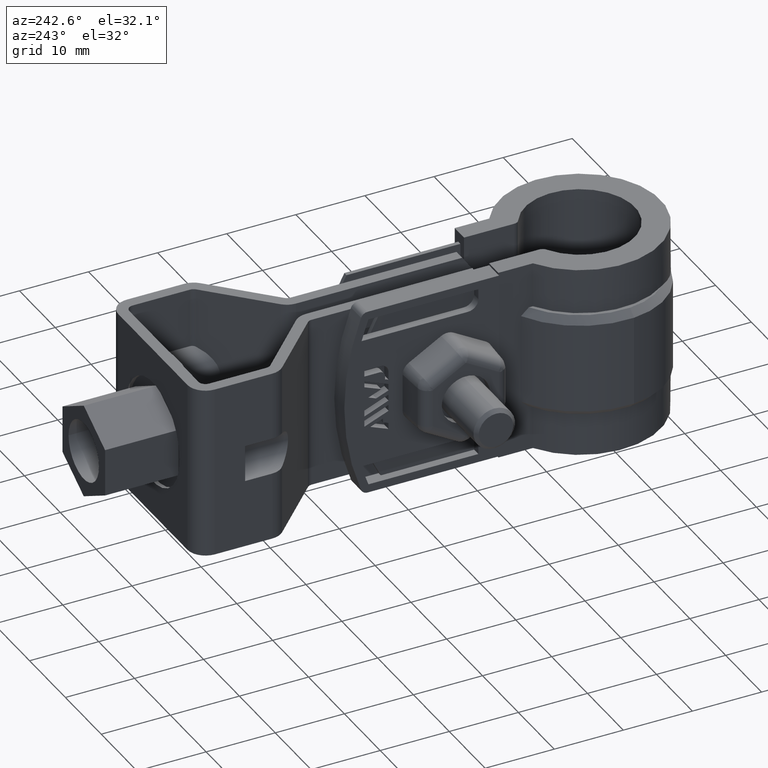
[diagram: clean part render]
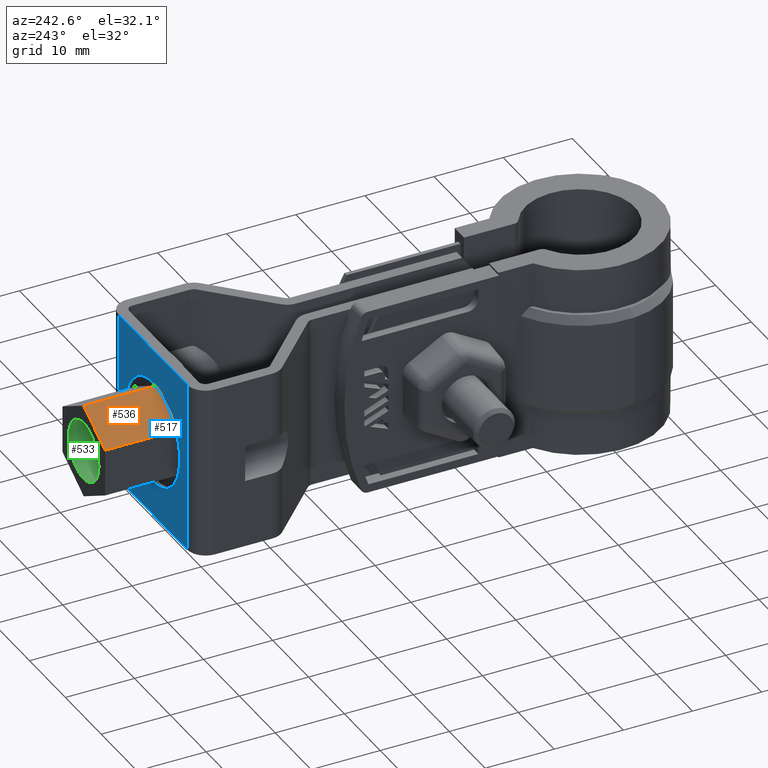
[diagram: same view with three faces highlighted in distinct colors, each labeled with its STEP entity id]
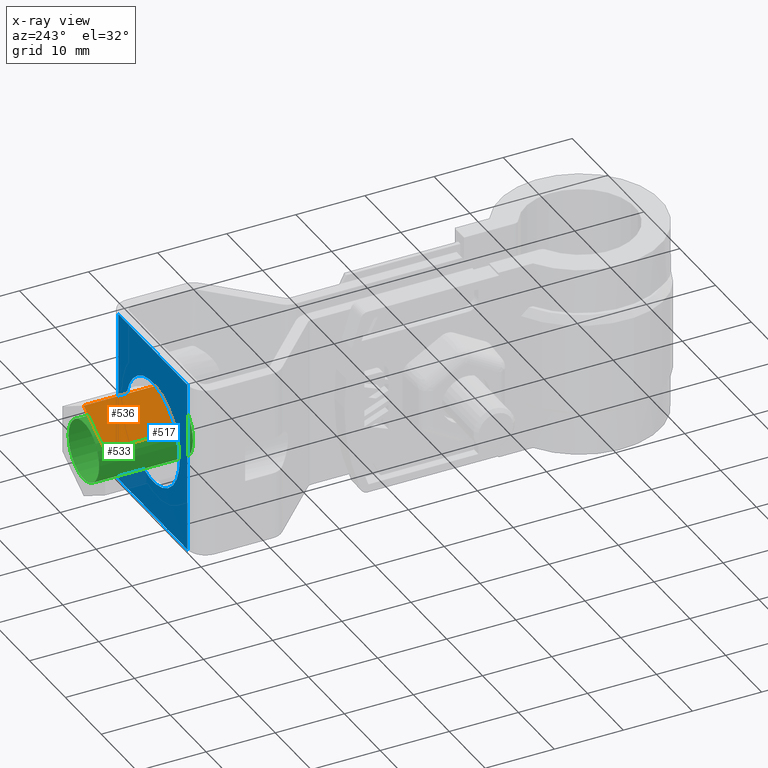
[diagram: x-ray of the same camera — body ghosted, the three highlighted faces saturated]
A machine part, auxiliary view with three faces highlighted in distinct colors.
The next image is the same camera in x-ray (body ghosted, the three faces saturated) — at least one of them is partly hidden behind the body in this view.
Their STEP definitions:

[orange] entity #536 — the highlighted planar face has unit normal (0.5, -0, -0.866).
#536 = ADVANCED_FACE( '', ( #1060 ), #1061, .F. );
#1060 = FACE_OUTER_BOUND( '', #2341, .T. );
#1061 = PLANE( '', #2342 );
#2341 = EDGE_LOOP( '', ( #5231, #5232, #5233, #5234 ) );
#2342 = AXIS2_PLACEMENT_3D( '', #5235, #5236, #5237 );
#5231 = ORIENTED_EDGE( '', *, *, #7012, .T. );
#5232 = ORIENTED_EDGE( '', *, *, #7025, .F. );
#5233 = ORIENTED_EDGE( '', *, *, #7026, .F. );
#5234 = ORIENTED_EDGE( '', *, *, #7023, .T. );
#5235 = CARTESIAN_POINT( '', ( -5.95000000000342, 71.7954761009379, -9.06476589909878 ) );
#5236 = DIRECTION( '', ( 0.500000000000184, -4.39824635139768E-012, -0.866025403784332 ) );
#5237 = DIRECTION( '', ( -0.866025403784332, -2.71319421082439E-012, -0.500000000000184 ) );
#7012 = EDGE_CURVE( '', #8265, #8263, #8266, .T. );
#7023 = EDGE_CURVE( '', #8284, #8265, #8285, .T. );
#7025 = EDGE_CURVE( '', #8287, #8263, #8288, .T. );
#7026 = EDGE_CURVE( '', #8284, #8287, #8289, .T. );
#8263 = VERTEX_POINT( '', #11415 );
#8265 = VERTEX_POINT( '', #11418 );
#8266 = LINE( '', #11419, #11420 );
#8284 = VERTEX_POINT( '', #11445 );
#8285 = LINE( '', #11446, #11447 );
#8287 = VERTEX_POINT( '', #11450 );
#8288 = LINE( '', #11451, #11452 );
#8289 = LINE( '', #11453, #11454 );
#11415 = CARTESIAN_POINT( '', ( -2.55441444114817E-012, 61.1954761009566, -5.62953179736449 ) );
#11418 = CARTESIAN_POINT( '', ( -5.95000000000182, 61.1954761009379, -9.06476589904404 ) );
#11419 = CARTESIAN_POINT( '', ( -5.95000000000182, 61.1954761009379, -9.06476589904402 ) );
#11420 = VECTOR( '', #13151, 1000.00000000000 );
#11445 = CARTESIAN_POINT( '', ( -5.95000000000342, 71.7954761009379, -9.06476589909880 ) );
#11446 = CARTESIAN_POINT( '', ( -5.95000000000342, 71.7954761009379, -9.06476589909880 ) );
#11447 = VECTOR( '', #13168, 1000.00000000000 );
#11450 = CARTESIAN_POINT( '', ( -4.15047696566165E-012, 71.7954761009566, -5.62953179741923 ) );
#11451 = CARTESIAN_POINT( '', ( -4.15047696566165E-012, 71.7954761009566, -5.62953179741923 ) );
#11452 = VECTOR( '', #13170, 1000.00000000000 );
#11453 = CARTESIAN_POINT( '', ( -5.95000000000342, 71.7954761009379, -9.06476589909878 ) );
#11454 = VECTOR( '', #13171, 1000.00000000000 );
#13151 = DIRECTION( '', ( 0.866025403784332, 2.71319421082439E-012, 0.500000000000184 ) );
#13168 = DIRECTION( '', ( 1.50571936274857E-013, -1.00000000000000, 5.16559017782484E-012 ) );
#13170 = DIRECTION( '', ( 1.50571936274857E-013, -1.00000000000000, 5.16559017782484E-012 ) );
#13171 = DIRECTION( '', ( 0.866025403784332, 2.71319421082439E-012, 0.500000000000184 ) );

[blue] entity #517 — the highlighted planar face has unit normal (-0, 1, -0).
#517 = ADVANCED_FACE( '', ( #1015, #1016 ), #1017, .T. );
#1015 = FACE_BOUND( '', #2296, .T. );
#1016 = FACE_OUTER_BOUND( '', #2297, .T. );
#1017 = PLANE( '', #2298 );
#2296 = EDGE_LOOP( '', ( #5069 ) );
#2297 = EDGE_LOOP( '', ( #5070, #5071, #5072, #5073 ) );
#2298 = AXIS2_PLACEMENT_3D( '', #5074, #5075, #5076 );
#5069 = ORIENTED_EDGE( '', *, *, #6979, .F. );
#5070 = ORIENTED_EDGE( '', *, *, #6892, .T. );
#5071 = ORIENTED_EDGE( '', *, *, #6944, .T. );
#5072 = ORIENTED_EDGE( '', *, *, #6991, .F. );
#5073 = ORIENTED_EDGE( '', *, *, #6902, .F. );
#5074 = CARTESIAN_POINT( '', ( -9.65000000000399, 61.7954761009842, -7.31359417471822E-010 ) );
#5075 = DIRECTION( '', ( -1.50571936274857E-013, 1.00000000000000, -5.16559017782484E-012 ) );
#5076 = DIRECTION( '', ( -1.00000000000000, -1.50571936275956E-013, -2.12762802151960E-013 ) );
#6892 = EDGE_CURVE( '', #8070, #8068, #8071, .T. );
#6902 = EDGE_CURVE( '', #8070, #8086, #8089, .T. );
#6944 = EDGE_CURVE( '', #8068, #8155, #8157, .T. );
#6979 = EDGE_CURVE( '', #8215, #8215, #8216, .T. );
#6991 = EDGE_CURVE( '', #8086, #8155, #8232, .T. );
#8068 = VERTEX_POINT( '', #11095 );
#8070 = VERTEX_POINT( '', #11097 );
#8071 = LINE( '', #11098, #11099 );
#8086 = VERTEX_POINT( '', #11118 );
#8089 = LINE( '', #11122, #11123 );
#8155 = VERTEX_POINT( '', #11240 );
#8157 = LINE( '', #11242, #11243 );
#8215 = VERTEX_POINT( '', #11344 );
#8216 = CIRCLE( '', #11345, 7.50000000000000 );
#8232 = LINE( '', #11370, #11371 );
#11095 = CARTESIAN_POINT( '', ( 9.64999999999600, 61.7954761009874, -7.27237714492901E-010 ) );
#11097 = CARTESIAN_POINT( '', ( -9.65000000000399, 61.7954761009842, -7.31359417471822E-010 ) );
#11098 = CARTESIAN_POINT( '', ( -9.65000000000399, 61.7954761009842, -7.31359417471822E-010 ) );
#11099 = VECTOR( '', #12963, 1000.00000000000 );
#11118 = CARTESIAN_POINT( '', ( -9.64999999999868, 61.7954761008551, -25.0000000007314 ) );
#11122 = CARTESIAN_POINT( '', ( -9.65000000000399, 61.7954761009842, -7.31359417471822E-010 ) );
#11123 = VECTOR( '', #12981, 1000.00000000000 );
#11240 = CARTESIAN_POINT( '', ( 9.65000000000132, 61.7954761008583, -25.0000000007272 ) );
#11242 = CARTESIAN_POINT( '', ( 9.64999999999600, 61.7954761009874, -7.27237714492901E-010 ) );
#11243 = VECTOR( '', #13043, 1000.00000000000 );
#11344 = CARTESIAN_POINT( '', ( 7.49999999999867, 61.7954861009222, -12.5000000007277 ) );
#11345 = AXIS2_PLACEMENT_3D( '', #13100, #13101, #13102 );
#11370 = CARTESIAN_POINT( '', ( -9.64999999999868, 61.7954761008551, -25.0000000007314 ) );
#11371 = VECTOR( '', #13118, 1000.00000000000 );
#12963 = DIRECTION( '', ( 1.00000000000000, 1.50571936275956E-013, 2.12762802151960E-013 ) );
#12981 = DIRECTION( '', ( 2.12762802152738E-013, -5.16559017782481E-012, -1.00000000000000 ) );
#13043 = DIRECTION( '', ( 2.12762802152738E-013, -5.16559017782481E-012, -1.00000000000000 ) );
#13100 = CARTESIAN_POINT( '', ( -1.32703276490674E-012, 61.7954861009211, -12.5000000007293 ) );
#13101 = DIRECTION( '', ( -1.50571936274857E-013, 1.00000000000000, -5.16559017782484E-012 ) );
#13102 = DIRECTION( '', ( 1.00000000000000, 1.50571936275955E-013, 2.12701571834269E-013 ) );
#13118 = DIRECTION( '', ( 1.00000000000000, 1.50571936275956E-013, 2.12762802151960E-013 ) );

[green] entity #533 — the highlighted cylindrical surface (bore or boss wall) has radius 4.25 mm, axis along (0, -1, 0).
#533 = ADVANCED_FACE( '', ( #1052, #1053 ), #1054, .F. );
#1052 = FACE_OUTER_BOUND( '', #2333, .T. );
#1053 = FACE_OUTER_BOUND( '', #2334, .T. );
#1054 = CYLINDRICAL_SURFACE( '', #2335, 4.25000000000000 );
#2333 = EDGE_LOOP( '', ( #5214 ) );
#2334 = EDGE_LOOP( '', ( #5215 ) );
#2335 = AXIS2_PLACEMENT_3D( '', #5216, #5217, #5218 );
#5214 = ORIENTED_EDGE( '', *, *, #7022, .F. );
#5215 = ORIENTED_EDGE( '', *, *, #7020, .F. );
#5216 = CARTESIAN_POINT( '', ( 2.49461076697862E-015, 53.9454761008890, -12.5000000006836 ) );
#5217 = DIRECTION( '', ( 1.50571936274857E-013, -1.00000000000000, 5.16559017782484E-012 ) );
#5218 = DIRECTION( '', ( 1.00000000000000, 1.50571936275957E-013, 2.13034638741656E-013 ) );
#7020 = EDGE_CURVE( '', #8278, #8278, #8279, .T. );
#7022 = EDGE_CURVE( '', #8282, #8282, #8283, .T. );
#8278 = VERTEX_POINT( '', #11439 );
#8279 = CIRCLE( '', #11440, 4.25000000000000 );
#8282 = VERTEX_POINT( '', #11443 );
#8283 = CIRCLE( '', #11444, 4.25000000000000 );
#11439 = CARTESIAN_POINT( '', ( 4.24999999999936, 58.1954761009217, -12.5000000007046 ) );
#11440 = AXIS2_PLACEMENT_3D( '', #13159, #13160, #13161 );
#11443 = CARTESIAN_POINT( '', ( 4.24999999999732, 71.7954761009217, -12.5000000007749 ) );
#11444 = AXIS2_PLACEMENT_3D( '', #13165, #13166, #13167 );
#13159 = CARTESIAN_POINT( '', ( -6.37436118405998E-013, 58.1954761009211, -12.5000000007055 ) );
#13160 = DIRECTION( '', ( -1.50571936274857E-013, 1.00000000000000, -5.16559017782484E-012 ) );
#13161 = DIRECTION( '', ( 1.00000000000000, 1.50571936275955E-013, 2.12701571834269E-013 ) );
#13165 = CARTESIAN_POINT( '', ( -2.68521445174405E-012, 71.7954761009211, -12.5000000007758 ) );
#13166 = DIRECTION( '', ( 1.50571936274857E-013, -1.00000000000000, 5.16559017782484E-012 ) );
#13167 = DIRECTION( '', ( 1.00000000000000, 1.50571936275957E-013, 2.13034638741656E-013 ) );